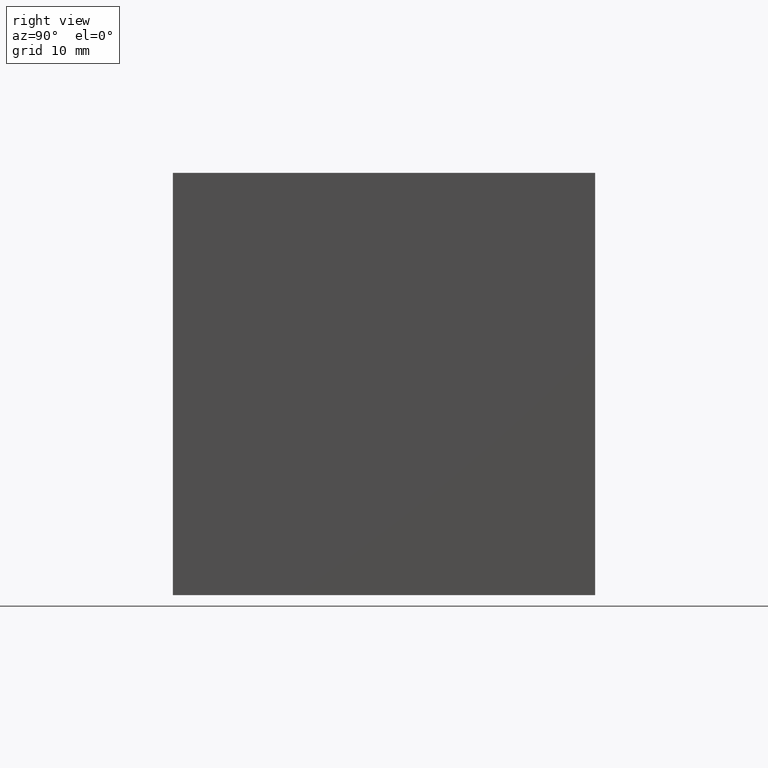
[diagram: clean part render]
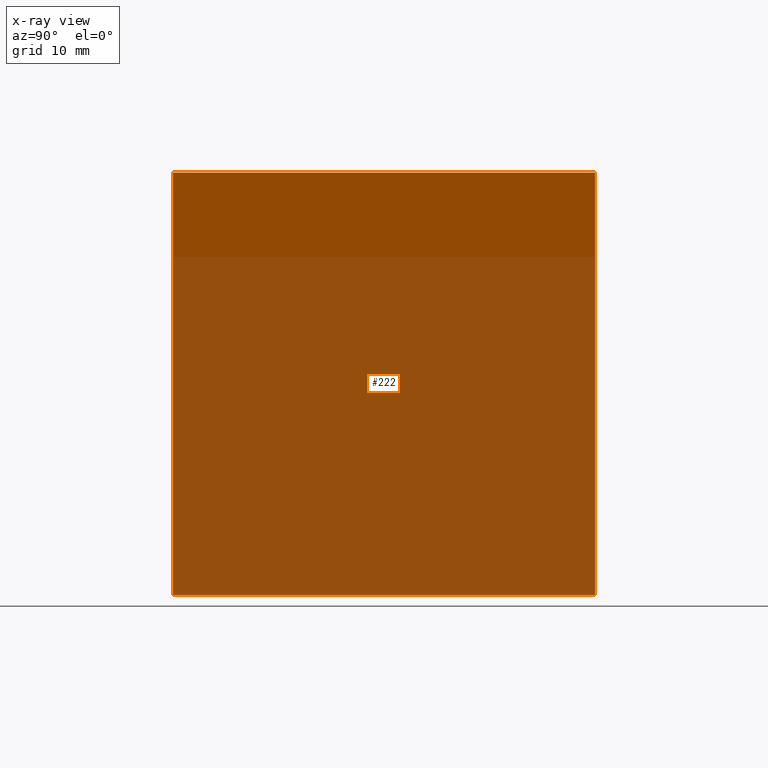
[diagram: x-ray — body ghosted, one internal face saturated and labeled with its STEP entity id]
A machine part, right view, then the same camera in x-ray: the body is ghosted and one INTERNAL B-rep face — a face not visible from any outside direction — is saturated and labeled: STEP entity #222.
In plain terms, the highlighted planar face has unit normal (0.7071, 0, -0.7071).
Its self-contained STEP definition (entity closure, byte-faithful):
#1 = VECTOR ( 'NONE', #31, 1000.000000000000000 ) ;
#16 = DIRECTION ( 'NONE',  ( 0.7071067811865475700, 0.0000000000000000000, 0.7071067811865474600 ) ) ;
#22 = CARTESIAN_POINT ( 'NONE',  ( -50.00000000000000000, 50.00000000000000000, -49.99999999999999300 ) ) ;
#31 = DIRECTION ( 'NONE',  ( -0.0000000000000000000, -1.000000000000000000, -0.0000000000000000000 ) ) ;
#33 = EDGE_CURVE ( 'NONE', #232, #256, #129, .T. ) ;
#54 = EDGE_CURVE ( 'NONE', #232, #139, #203, .T. ) ;
#59 = DIRECTION ( 'NONE',  ( -0.0000000000000000000, -1.000000000000000000, -0.0000000000000000000 ) ) ;
#61 = ORIENTED_EDGE ( 'NONE', *, *, #33, .F. ) ;
#72 = EDGE_CURVE ( 'NONE', #139, #181, #261, .T. ) ;
#77 = DIRECTION ( 'NONE',  ( 0.7071067811865475700, 0.0000000000000000000, 0.7071067811865474600 ) ) ;
#81 = DIRECTION ( 'NONE',  ( 0.7071067811865474600, 0.0000000000000000000, -0.7071067811865476800 ) ) ;
#89 = CARTESIAN_POINT ( 'NONE',  ( 0.0000000000000000000, 0.0000000000000000000, 0.0000000000000000000 ) ) ;
#100 = CARTESIAN_POINT ( 'NONE',  ( 0.0000000000000000000, 50.00000000000000000, 0.0000000000000000000 ) ) ;
#109 = PLANE ( 'NONE',  #149 ) ;
#110 = EDGE_LOOP ( 'NONE', ( #265, #145, #61, #248 ) ) ;
#129 = LINE ( 'NONE', #202, #258 ) ;
#137 = LINE ( 'NONE', #169, #1 ) ;
#139 = VERTEX_POINT ( 'NONE', #188 ) ;
#145 = ORIENTED_EDGE ( 'NONE', *, *, #260, .F. ) ;
#149 = AXIS2_PLACEMENT_3D ( 'NONE', #22, #81, #274 ) ;
#155 = CARTESIAN_POINT ( 'NONE',  ( -50.00000000000000000, 50.00000000000000000, -49.99999999999999300 ) ) ;
#165 = VECTOR ( 'NONE', #16, 1000.000000000000000 ) ;
#167 = CARTESIAN_POINT ( 'NONE',  ( -50.00000000000000000, 50.00000000000000000, -49.99999999999999300 ) ) ;
#169 = CARTESIAN_POINT ( 'NONE',  ( 0.0000000000000000000, 50.00000000000000000, 0.0000000000000000000 ) ) ;
#181 = VERTEX_POINT ( 'NONE', #89 ) ;
#188 = CARTESIAN_POINT ( 'NONE',  ( -50.00000000000000000, 0.0000000000000000000, -49.99999999999999300 ) ) ;
#194 = CARTESIAN_POINT ( 'NONE',  ( -50.00000000000000000, 0.0000000000000000000, -49.99999999999999300 ) ) ;
#196 = FACE_OUTER_BOUND ( 'NONE', #110, .T. ) ;
#202 = CARTESIAN_POINT ( 'NONE',  ( -50.00000000000000000, 50.00000000000000000, -49.99999999999999300 ) ) ;
#203 = LINE ( 'NONE', #155, #227 ) ;
#222 = ADVANCED_FACE ( 'NONE', ( #196 ), #109, .F. ) ;
#227 = VECTOR ( 'NONE', #59, 1000.000000000000000 ) ;
#232 = VERTEX_POINT ( 'NONE', #167 ) ;
#248 = ORIENTED_EDGE ( 'NONE', *, *, #54, .T. ) ;
#256 = VERTEX_POINT ( 'NONE', #100 ) ;
#258 = VECTOR ( 'NONE', #77, 1000.000000000000000 ) ;
#260 = EDGE_CURVE ( 'NONE', #256, #181, #137, .T. ) ;
#261 = LINE ( 'NONE', #194, #165 ) ;
#265 = ORIENTED_EDGE ( 'NONE', *, *, #72, .T. ) ;
#274 = DIRECTION ( 'NONE',  ( -0.7071067811865476800, 0.0000000000000000000, -0.7071067811865474600 ) ) ;